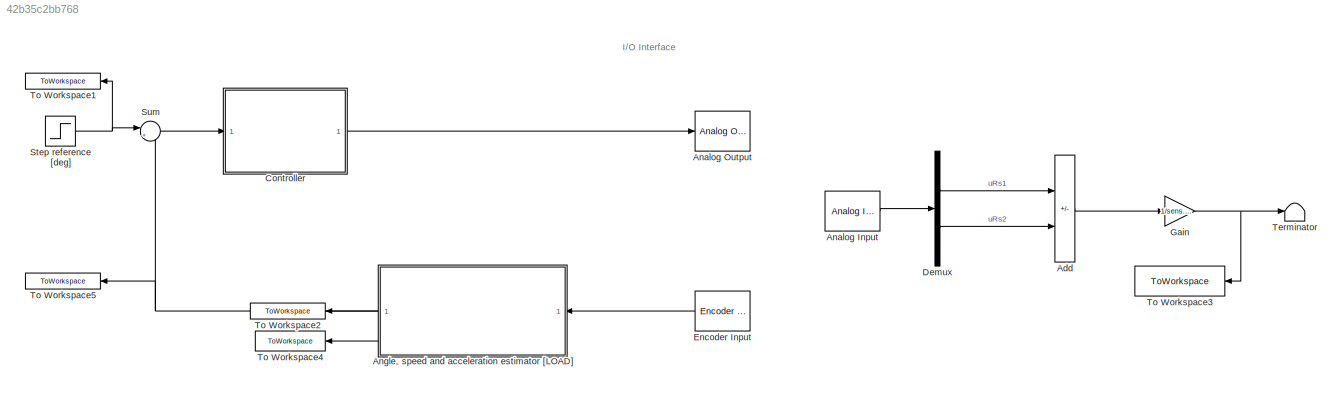
MODEL slx_42b35c2bb768
KIND model
CONFIG AbsTol = auto
CONFIG EnableMultiTasking = off
CONFIG FixedStep = 0.001
CONFIG MaxStep = auto
CONFIG MinStep = auto
CONFIG RelTol = 1e-3
CONFIG SampleTimeConstraint = Unconstrained
CONFIG SolverName = FixedStepAuto
CONFIG StartTime = 0.0
CONFIG StopTime = 90
BLOCK [Sum] Add
  IconShape = rectangular
  Inputs = +-
BLOCK [Reference] Analog Input  REF=sldrtlib/Analog Input
  AttributesFormatString = National Instruments\nPCI-6221 [auto]
  SourceBlock = sldrtlib/Analog Input
  SourceType = Simulink Desktop Real-Time Analog Input
BLOCK [Reference] Analog Output  REF=sldrtlib/Analog Output
  AttributesFormatString = National Instruments\nPCI-6221 [auto]
  SourceBlock = sldrtlib/Analog Output
  SourceType = Simulink Desktop Real-Time Analog Output
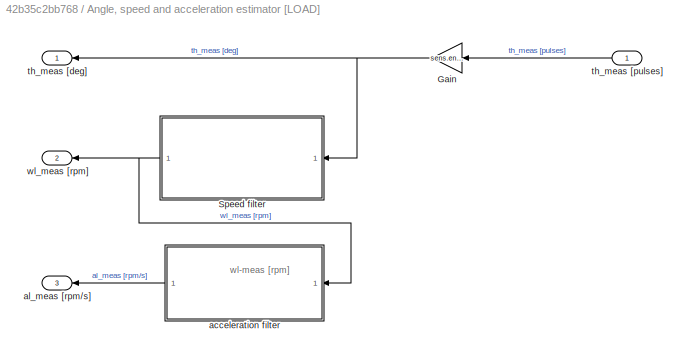
BLOCK [SubSystem] Angle, speed and acceleration estimator [LOAD]
BLOCK [Gain] Angle, speed and acceleration estimator [LOAD]/Gain
  Gain = sens.enc.pulse2deg
  NameLocation = top
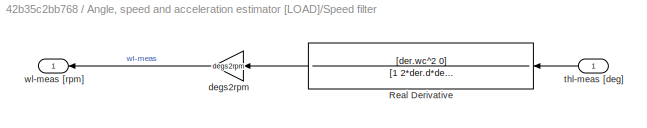
BLOCK [SubSystem] Angle, speed and acceleration estimator [LOAD]/Speed filter
  NameLocation = top
BLOCK [TransferFcn] Angle, speed and acceleration estimator [LOAD]/Speed filter/Real Derivative
  Denominator = [1 2*der.d*der.wc der.wc^2]
  NameLocation = top
  Numerator = [der.wc^2 0]
BLOCK [Gain] Angle, speed and acceleration estimator [LOAD]/Speed filter/degs2rpm
  Gain = degs2rpm
BLOCK [Inport] Angle, speed and acceleration estimator [LOAD]/Speed filter/thl-meas [deg]
BLOCK [Outport] Angle, speed and acceleration estimator [LOAD]/Speed filter/wl-meas [rpm]
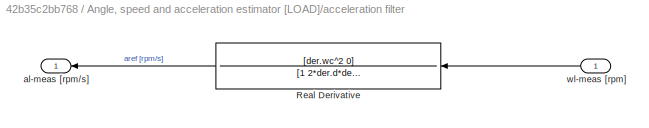
BLOCK [SubSystem] Angle, speed and acceleration estimator [LOAD]/acceleration filter
BLOCK [TransferFcn] Angle, speed and acceleration estimator [LOAD]/acceleration filter/Real Derivative
  Denominator = [1 2*der.d*der.wc der.wc^2]
  NameLocation = top
  Numerator = [der.wc^2 0]
BLOCK [Outport] Angle, speed and acceleration estimator [LOAD]/acceleration filter/al-meas [rpm//s]
  NameLocation = top
BLOCK [Inport] Angle, speed and acceleration estimator [LOAD]/acceleration filter/wl-meas [rpm]
BLOCK [Outport] Angle, speed and acceleration estimator [LOAD]/al_meas [rpm//s]
  Port = 3
BLOCK [Outport] Angle, speed and acceleration estimator [LOAD]/th_meas [deg]
BLOCK [Inport] Angle, speed and acceleration estimator [LOAD]/th_meas [pulses]
  NameLocation = top
BLOCK [Outport] Angle, speed and acceleration estimator [LOAD]/wl_meas [rpm]
  Port = 2
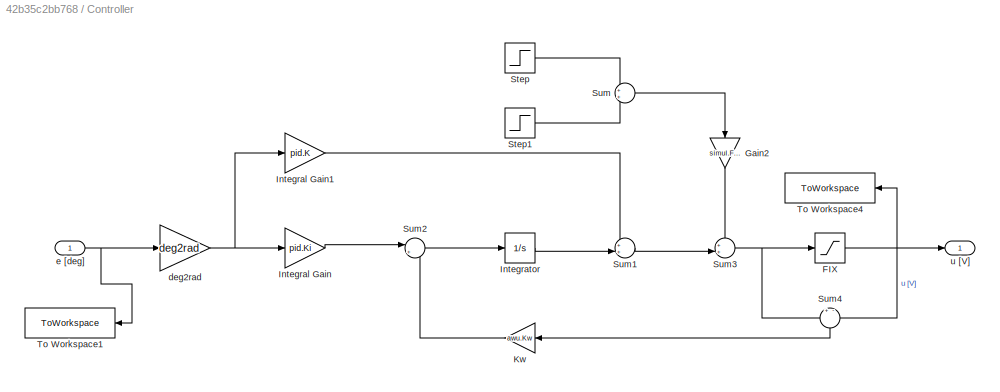
BLOCK [SubSystem] Controller
BLOCK [Saturate] Controller/FIX 
  LowerLimit = -10
  UpperLimit = 10
BLOCK [Gain] Controller/Gain2
  Gain = simul.FFW
  NameLocation = left
BLOCK [Gain] Controller/Integral Gain
  Gain = pid.Ki
BLOCK [Gain] Controller/Integral Gain1
  Gain = pid.K
BLOCK [Integrator] Controller/Integrator
BLOCK [Gain] Controller/Kw
  Gain = awu.Kw
BLOCK [Step] Controller/Step
  After = 10
  SampleTime = Ts
BLOCK [Step] Controller/Step1
  After = -10
  SampleTime = Ts
  Time = end_step
BLOCK [Sum] Controller/Sum
BLOCK [Sum] Controller/Sum1
  Inputs = ++|
BLOCK [Sum] Controller/Sum2
  Inputs = |+-
BLOCK [Sum] Controller/Sum3
  Inputs = ++|
BLOCK [Sum] Controller/Sum4
  Inputs = +-
  NameLocation = left
BLOCK [ToWorkspace] Controller/To Workspace1
  FixptAsFi = on
  MaxDataPoints = inf
  NameLocation = top
  SampleTime = Ts
  SaveFormat = Structure With Time
  VariableName = e
BLOCK [ToWorkspace] Controller/To Workspace4
  FixptAsFi = on
  MaxDataPoints = inf
  NameLocation = top
  SampleTime = Ts
  SaveFormat = Structure With Time
  VariableName = u
BLOCK [Gain] Controller/deg2rad
  Gain = deg2rad
BLOCK [Inport] Controller/e [deg]
BLOCK [Outport] Controller/u [V]
BLOCK [Demux] Demux
  Outputs = 2
BLOCK [Reference] Encoder Input  REF=sldrtlib/Encoder Input
  AttributesFormatString = National Instruments\nPCI-6221 [auto]
  NameLocation = top
  SourceBlock = sldrtlib/Encoder Input
  SourceType = Simulink Desktop Real-Time Encoder Input
BLOCK [Gain] Gain
  Gain = 1/sens.curr.Rs
BLOCK [Step] Step reference [deg]
  After = simul.stepdeg
BLOCK [Sum] Sum
  Inputs = |+-
BLOCK [Terminator] Terminator
BLOCK [ToWorkspace] To Workspace1
  FixptAsFi = on
  MaxDataPoints = inf
  NameLocation = top
  SampleTime = Ts
  SaveFormat = Structure With Time
  VariableName = thref
BLOCK [ToWorkspace] To Workspace2
  FixptAsFi = on
  MaxDataPoints = inf
  NameLocation = top
  SampleTime = Ts
  SaveFormat = Structure With Time
  VariableName = wl_meas
BLOCK [ToWorkspace] To Workspace3
  FixptAsFi = on
  MaxDataPoints = inf
  NameLocation = top
  SampleTime = Ts
  SaveFormat = Structure With Time
  VariableName = ia
BLOCK [ToWorkspace] To Workspace4
  FixptAsFi = on
  MaxDataPoints = inf
  NameLocation = top
  SampleTime = Ts
  SaveFormat = Structure With Time
  VariableName = al_meas
BLOCK [ToWorkspace] To Workspace5
  FixptAsFi = on
  MaxDataPoints = inf
  SampleTime = Ts
  SaveFormat = Structure With Time
  VariableName = thl_meas
ANNOTATION (root): I/O Interface
ANNOTATION Angle, speed and acceleration estimator [LOAD]: wl-meas [rpm]
LINE Add:1 -> Gain:1
LINE Analog Input:1 -> Demux:1
NET Angle, speed and acceleration estimator [LOAD]/Gain:1 -> Angle, speed and acceleration estimator [LOAD]/Speed filter:1, Angle, speed and acceleration estimator [LOAD]/th_meas [deg]:1
LINE Angle, speed and acceleration estimator [LOAD]/Speed filter/Real Derivative:1 -> Angle, speed and acceleration estimator [LOAD]/Speed filter/degs2rpm:1
LINE Angle, speed and acceleration estimator [LOAD]/Speed filter/degs2rpm:1 -> Angle, speed and acceleration estimator [LOAD]/Speed filter/wl-meas [rpm]:1
LINE Angle, speed and acceleration estimator [LOAD]/Speed filter/thl-meas [deg]:1 -> Angle, speed and acceleration estimator [LOAD]/Speed filter/Real Derivative:1
NET Angle, speed and acceleration estimator [LOAD]/Speed filter:1 -> Angle, speed and acceleration estimator [LOAD]/acceleration filter:1, Angle, speed and acceleration estimator [LOAD]/wl_meas [rpm]:1
LINE Angle, speed and acceleration estimator [LOAD]/acceleration filter/Real Derivative:1 -> Angle, speed and acceleration estimator [LOAD]/acceleration filter/al-meas [rpm//s]:1
LINE Angle, speed and acceleration estimator [LOAD]/acceleration filter/wl-meas [rpm]:1 -> Angle, speed and acceleration estimator [LOAD]/acceleration filter/Real Derivative:1
LINE Angle, speed and acceleration estimator [LOAD]/acceleration filter:1 -> Angle, speed and acceleration estimator [LOAD]/al_meas [rpm//s]:1
LINE Angle, speed and acceleration estimator [LOAD]/th_meas [pulses]:1 -> Angle, speed and acceleration estimator [LOAD]/Gain:1
NET Angle, speed and acceleration estimator [LOAD]:1 -> Sum:2, To Workspace5:1
LINE Angle, speed and acceleration estimator [LOAD]:2 -> To Workspace2:1
LINE Angle, speed and acceleration estimator [LOAD]:3 -> To Workspace4:1
NET Controller/FIX :1 -> Controller/Sum4:2, Controller/To Workspace4:1, Controller/u [V]:1
LINE Controller/Gain2:1 -> Controller/Sum3:1
LINE Controller/Integral Gain1:1 -> Controller/Sum1:1
LINE Controller/Integral Gain:1 -> Controller/Sum2:1
LINE Controller/Integrator:1 -> Controller/Sum1:2
LINE Controller/Kw:1 -> Controller/Sum2:2
LINE Controller/Step1:1 -> Controller/Sum:2
LINE Controller/Step:1 -> Controller/Sum:1
LINE Controller/Sum1:1 -> Controller/Sum3:2
LINE Controller/Sum2:1 -> Controller/Integrator:1
NET Controller/Sum3:1 -> Controller/FIX :1, Controller/Sum4:1
LINE Controller/Sum4:1 -> Controller/Kw:1
LINE Controller/Sum:1 -> Controller/Gain2:1
NET Controller/deg2rad:1 -> Controller/Integral Gain1:1, Controller/Integral Gain:1
NET Controller/e [deg]:1 -> Controller/To Workspace1:1, Controller/deg2rad:1
LINE Controller:1 -> Analog Output:1
LINE Demux:1 -> Add:1
LINE Demux:2 -> Add:2
LINE Encoder Input:1 -> Angle, speed and acceleration estimator [LOAD]:1
NET Gain:1 -> Terminator:1, To Workspace3:1
NET Step reference [deg]:1 -> Sum:1, To Workspace1:1
LINE Sum:1 -> Controller:1
note: NET lines group one-source signal fan-out (src -> all destinations, sorted); 1:1 wires keep LINE
